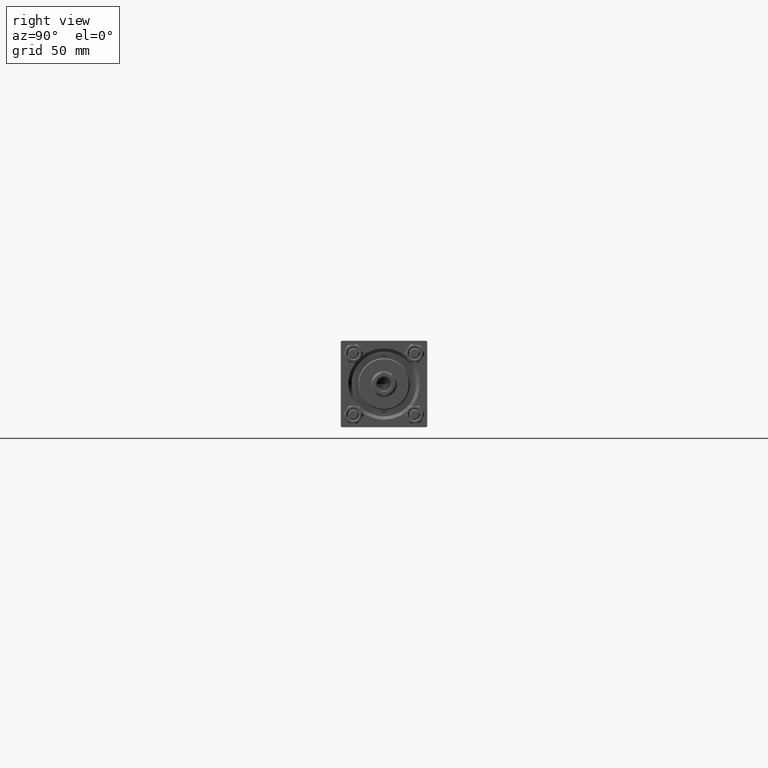
[diagram: clean part render]
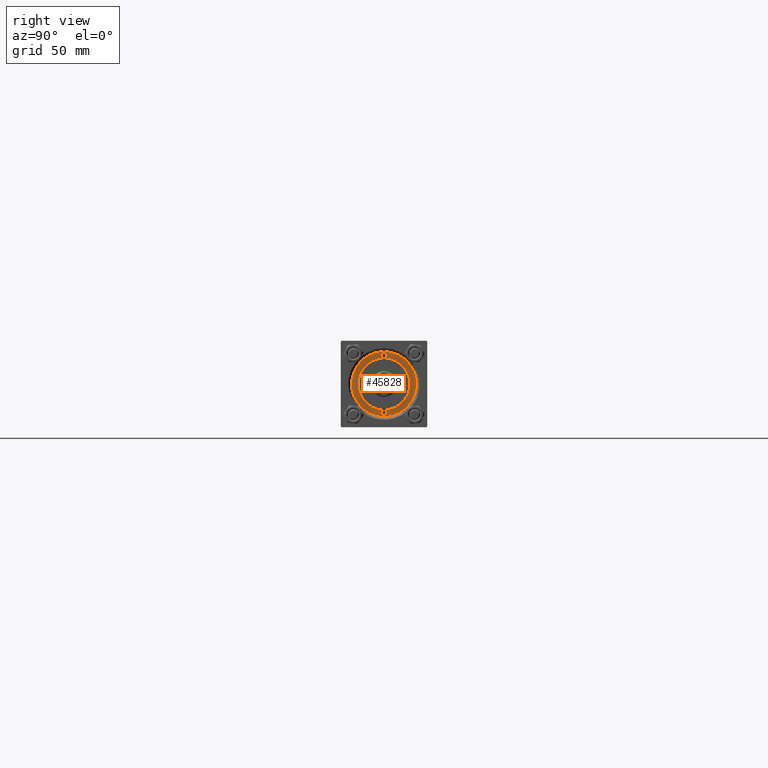
[diagram: same view with one face highlighted and labeled with its STEP entity id]
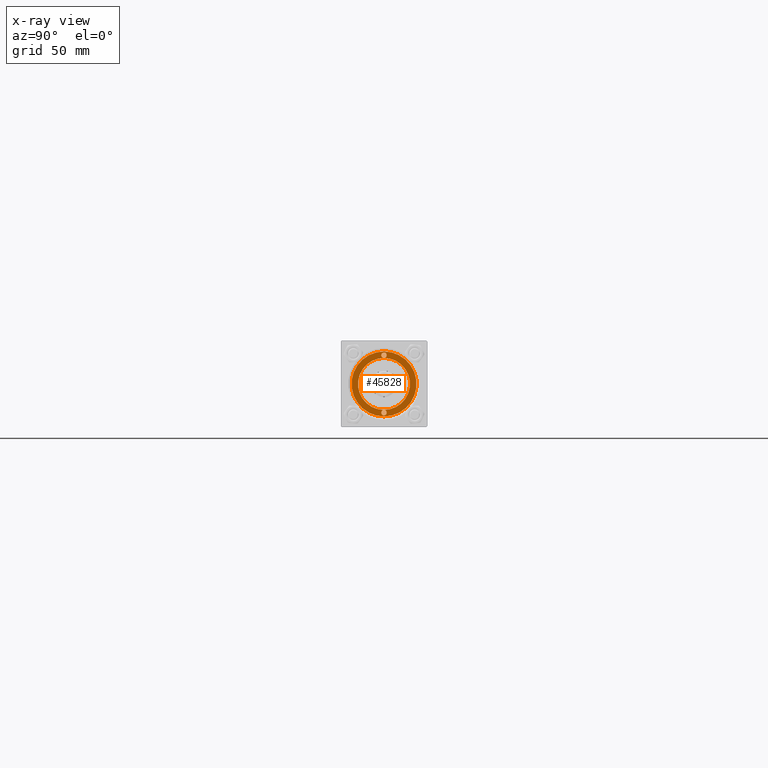
[diagram: x-ray of the same camera — body ghosted, the highlighted face saturated]
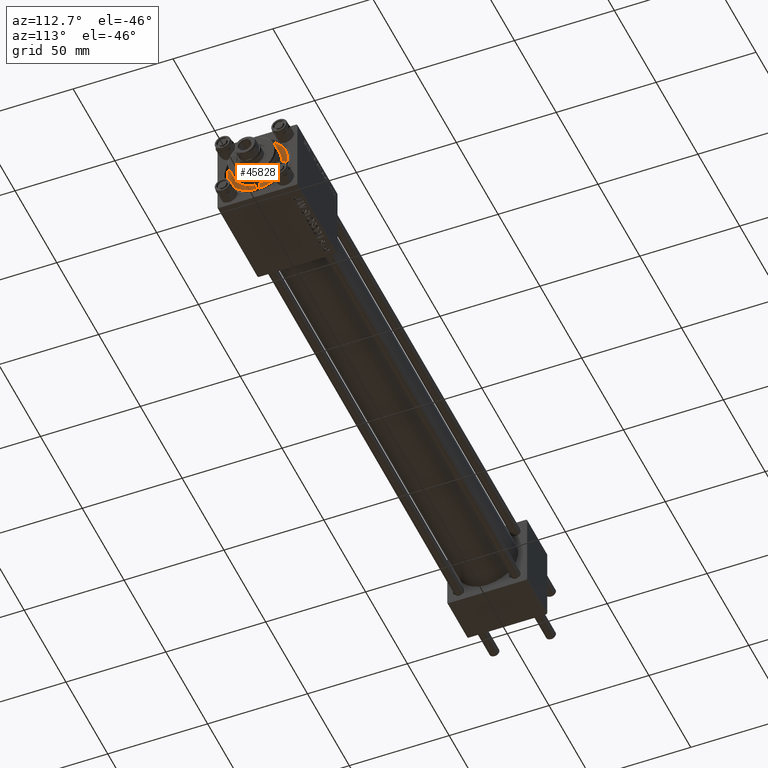
[diagram: same view with one face highlighted and labeled with its STEP entity id]
A machine part, right view. The second image highlights one B-rep face of the part: STEP entity #45828.
The next image is the same camera in x-ray: the body ghosted, the highlighted face saturated — about 0% of this face is hidden behind the body in this view.
A second angle (auxiliary view) of the same face is appended — the face is thin or edge-on in the first view.
In plain terms, the highlighted planar face has unit normal (1, 0, -0).
Its self-contained STEP definition (entity closure, byte-faithful):
#705 = CARTESIAN_POINT ( 'NONE',  ( -13.25000000000000178, 0.000000000000000000, 28.69999999999999929 ) ) ;
#1238 = VERTEX_POINT ( 'NONE', #9912 ) ;
#1536 = FACE_OUTER_BOUND ( 'NONE', #34535, .T. ) ;
#1616 = AXIS2_PLACEMENT_3D ( 'NONE', #29787, #3013, #14628 ) ;
#2206 = ORIENTED_EDGE ( 'NONE', *, *, #39156, .F. ) ;
#2347 = AXIS2_PLACEMENT_3D ( 'NONE', #705, #31523, #22713 ) ;
#2432 = EDGE_CURVE ( 'NONE', #35888, #1238, #4864, .T. ) ;
#2616 = DIRECTION ( 'NONE',  ( 0.000000000000000000, 0.000000000000000000, 1.000000000000000000 ) ) ;
#2895 = AXIS2_PLACEMENT_3D ( 'NONE', #11323, #22951, #22708 ) ;
#3013 = DIRECTION ( 'NONE',  ( 0.000000000000000000, 0.000000000000000000, 1.000000000000000000 ) ) ;
#3409 = DIRECTION ( 'NONE',  ( 1.000000000000000000, 0.000000000000000000, 0.000000000000000000 ) ) ;
#3927 = CARTESIAN_POINT ( 'NONE',  ( -14.49999999999999822, 1.530808498934190585E-16, 28.69999999999999929 ) ) ;
#4648 = CIRCLE ( 'NONE', #36136, 1.249999999999999334 ) ;
#4864 = CIRCLE ( 'NONE', #1616, 12.00000000000000178 ) ;
#5449 = CARTESIAN_POINT ( 'NONE',  ( -15.00000000000000000, 0.000000000000000000, 28.69999999999999929 ) ) ;
#5635 = ORIENTED_EDGE ( 'NONE', *, *, #38130, .T. ) ;
#6105 = CIRCLE ( 'NONE', #38401, 1.249999999999999334 ) ;
#6817 = DIRECTION ( 'NONE',  ( 1.000000000000000000, 0.000000000000000000, 0.000000000000000000 ) ) ;
#8155 = CARTESIAN_POINT ( 'NONE',  ( 0.000000000000000000, 0.000000000000000000, 28.69999999999999929 ) ) ;
#9912 = CARTESIAN_POINT ( 'NONE',  ( 12.00000000000000178, 0.000000000000000000, 28.69999999999999929 ) ) ;
#10614 = DIRECTION ( 'NONE',  ( 0.000000000000000000, 0.000000000000000000, 1.000000000000000000 ) ) ;
#11162 = DIRECTION ( 'NONE',  ( 0.000000000000000000, 0.000000000000000000, 1.000000000000000000 ) ) ;
#11323 = CARTESIAN_POINT ( 'NONE',  ( -13.25000000000000178, 0.000000000000000000, 28.69999999999999929 ) ) ;
#12804 = EDGE_CURVE ( 'NONE', #19404, #24469, #36520, .T. ) ;
#14318 = ORIENTED_EDGE ( 'NONE', *, *, #34276, .F. ) ;
#14628 = DIRECTION ( 'NONE',  ( 1.000000000000000000, 0.000000000000000000, 0.000000000000000000 ) ) ;
#14818 = ORIENTED_EDGE ( 'NONE', *, *, #23971, .F. ) ;
#18815 = DIRECTION ( 'NONE',  ( 0.000000000000000000, 0.000000000000000000, 1.000000000000000000 ) ) ;
#19079 = VERTEX_POINT ( 'NONE', #25356 ) ;
#19404 = VERTEX_POINT ( 'NONE', #26979 ) ;
#21574 = CIRCLE ( 'NONE', #39305, 15.00000000000000000 ) ;
#22001 = AXIS2_PLACEMENT_3D ( 'NONE', #33169, #2616, #29637 ) ;
#22708 = DIRECTION ( 'NONE',  ( 1.000000000000000000, 0.000000000000000000, 0.000000000000000000 ) ) ;
#22713 = DIRECTION ( 'NONE',  ( 1.000000000000000000, 0.000000000000000000, 0.000000000000000000 ) ) ;
#22951 = DIRECTION ( 'NONE',  ( 0.000000000000000000, 0.000000000000000000, 1.000000000000000000 ) ) ;
#23103 = DIRECTION ( 'NONE',  ( 0.000000000000000000, 0.000000000000000000, 1.000000000000000000 ) ) ;
#23971 = EDGE_CURVE ( 'NONE', #1238, #19079, #6105, .T. ) ;
#24469 = VERTEX_POINT ( 'NONE', #5449 ) ;
#25356 = CARTESIAN_POINT ( 'NONE',  ( 14.49999999999999822, 0.000000000000000000, 28.69999999999999929 ) ) ;
#26435 = ORIENTED_EDGE ( 'NONE', *, *, #46529, .F. ) ;
#26979 = CARTESIAN_POINT ( 'NONE',  ( 15.00000000000000000, 1.836970198721029589E-15, 28.69999999999999929 ) ) ;
#27369 = CIRCLE ( 'NONE', #2347, 1.249999999999997558 ) ;
#29637 = DIRECTION ( 'NONE',  ( 1.000000000000000000, 0.000000000000000000, 0.000000000000000000 ) ) ;
#29787 = CARTESIAN_POINT ( 'NONE',  ( 0.000000000000000000, 0.000000000000000000, 28.69999999999999929 ) ) ;
#30619 = DIRECTION ( 'NONE',  ( 1.000000000000000000, 0.000000000000000000, 0.000000000000000000 ) ) ;
#31523 = DIRECTION ( 'NONE',  ( 0.000000000000000000, 0.000000000000000000, 1.000000000000000000 ) ) ;
#33169 = CARTESIAN_POINT ( 'NONE',  ( 0.000000000000000000, 0.000000000000000000, 28.69999999999999929 ) ) ;
#34276 = EDGE_CURVE ( 'NONE', #35888, #49385, #43239, .T. ) ;
#34535 = EDGE_LOOP ( 'NONE', ( #5635, #40582 ) ) ;
#35023 = EDGE_CURVE ( 'NONE', #1238, #35888, #45689, .T. ) ;
#35888 = VERTEX_POINT ( 'NONE', #49378 ) ;
#35889 = PLANE ( 'NONE',  #49136 ) ;
#36136 = AXIS2_PLACEMENT_3D ( 'NONE', #49618, #23103, #3409 ) ;
#36144 = FACE_BOUND ( 'NONE', #38336, .T. ) ;
#36520 = CIRCLE ( 'NONE', #22001, 15.00000000000000000 ) ;
#38130 = EDGE_CURVE ( 'NONE', #24469, #19404, #21574, .T. ) ;
#38336 = EDGE_LOOP ( 'NONE', ( #47545, #26435, #14318, #46880, #2206, #14818 ) ) ;
#38401 = AXIS2_PLACEMENT_3D ( 'NONE', #45470, #10614, #6817 ) ;
#38457 = AXIS2_PLACEMENT_3D ( 'NONE', #8155, #18815, #38763 ) ;
#38695 = CARTESIAN_POINT ( 'NONE',  ( 0.000000000000000000, 0.000000000000000000, 28.69999999999999929 ) ) ;
#38763 = DIRECTION ( 'NONE',  ( 1.000000000000000000, 0.000000000000000000, 0.000000000000000000 ) ) ;
#39156 = EDGE_CURVE ( 'NONE', #19079, #1238, #4648, .T. ) ;
#39305 = AXIS2_PLACEMENT_3D ( 'NONE', #38695, #11162, #30619 ) ;
#39693 = DIRECTION ( 'NONE',  ( 0.000000000000000000, 0.000000000000000000, 1.000000000000000000 ) ) ;
#39937 = CARTESIAN_POINT ( 'NONE',  ( 0.000000000000000000, 0.000000000000000000, 28.69999999999999929 ) ) ;
#40582 = ORIENTED_EDGE ( 'NONE', *, *, #12804, .T. ) ;
#43239 = CIRCLE ( 'NONE', #2895, 1.249999999999997558 ) ;
#45470 = CARTESIAN_POINT ( 'NONE',  ( 13.25000000000000000, 0.000000000000000000, 28.69999999999999929 ) ) ;
#45689 = CIRCLE ( 'NONE', #38457, 12.00000000000000178 ) ;
#45828 = ADVANCED_FACE ( 'NONE', ( #36144, #1536 ), #35889, .T. ) ;
#46529 = EDGE_CURVE ( 'NONE', #49385, #35888, #27369, .T. ) ;
#46880 = ORIENTED_EDGE ( 'NONE', *, *, #35023, .F. ) ;
#47006 = DIRECTION ( 'NONE',  ( 1.000000000000000000, 0.000000000000000000, -0.000000000000000000 ) ) ;
#47545 = ORIENTED_EDGE ( 'NONE', *, *, #2432, .F. ) ;
#49136 = AXIS2_PLACEMENT_3D ( 'NONE', #39937, #39693, #47006 ) ;
#49378 = CARTESIAN_POINT ( 'NONE',  ( -12.00000000000000178, 0.000000000000000000, 28.69999999999999929 ) ) ;
#49385 = VERTEX_POINT ( 'NONE', #3927 ) ;
#49618 = CARTESIAN_POINT ( 'NONE',  ( 13.25000000000000000, 0.000000000000000000, 28.69999999999999929 ) ) ;